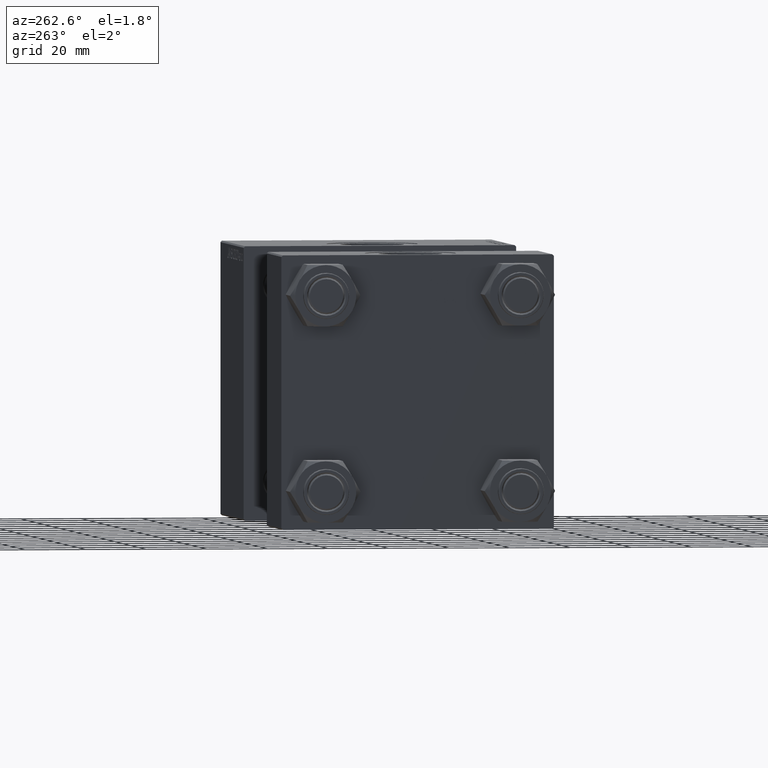
[diagram: clean part render]
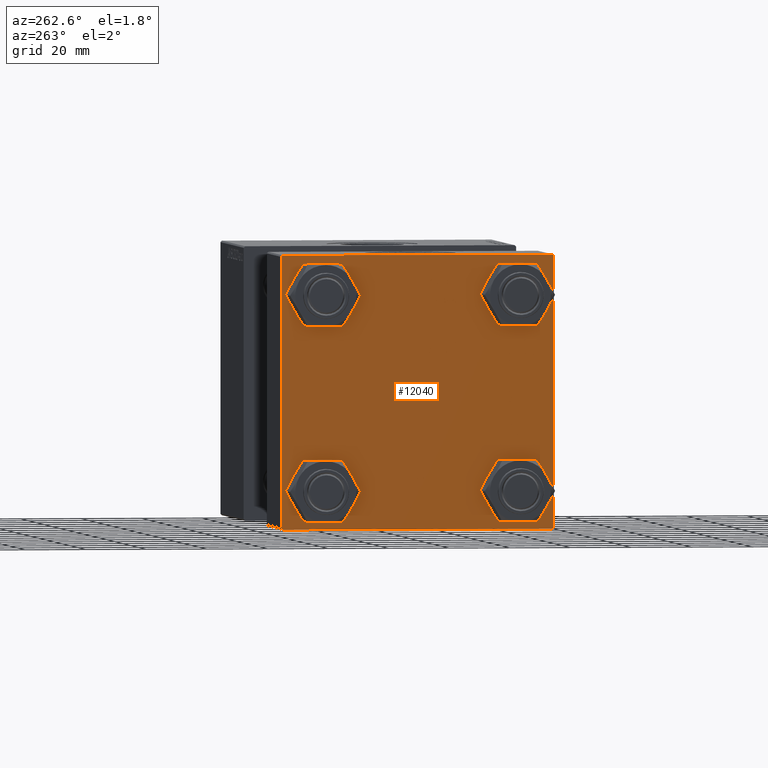
[diagram: same view with one face highlighted and labeled with its STEP entity id]
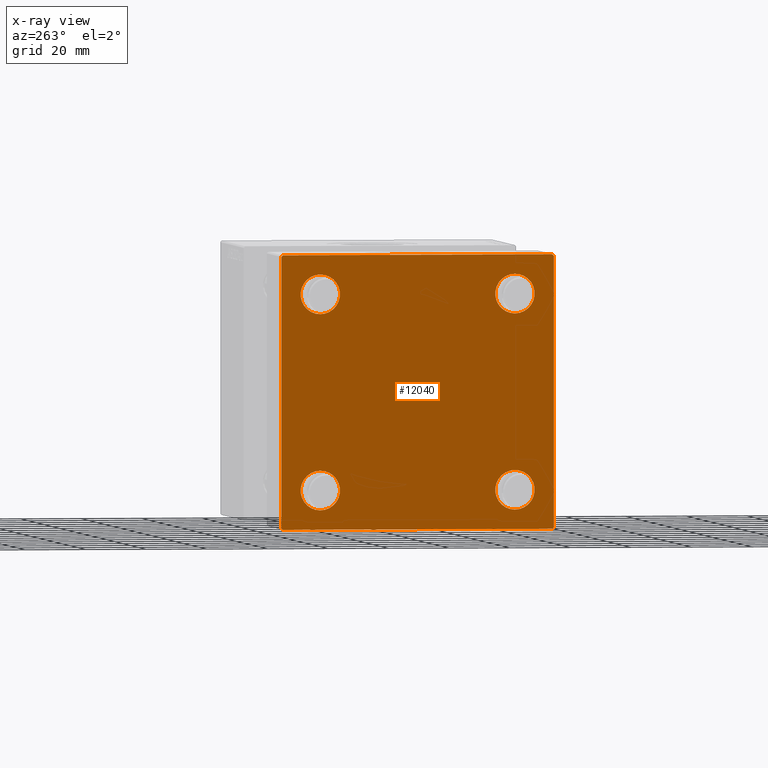
[diagram: x-ray of the same camera — body ghosted, the highlighted face saturated]
A machine part, auxiliary view. The second image highlights one B-rep face of the part: STEP entity #12040.
The next image is the same camera in x-ray: the body ghosted, the highlighted face saturated — about 0% of this face is hidden behind the body in this view.
In plain terms, the highlighted planar face has unit normal (-1, 0, 0).
Its self-contained STEP definition (entity closure, byte-faithful):
#12 = DIRECTION ( 'NONE',  ( 0.000000000000000000, -0.7071067811865672237, 0.7071067811865279218 ) ) ;
#197 = LINE ( 'NONE', #38522, #40709 ) ;
#264 = LINE ( 'NONE', #19299, #34471 ) ;
#451 = VECTOR ( 'NONE', #15114, 1000.000000000000114 ) ;
#694 = DIRECTION ( 'NONE',  ( 0.000000000000000000, -1.000000000000000000, -7.709882115452476934E-17 ) ) ;
#762 = CARTESIAN_POINT ( 'NONE',  ( 0.000000000000000000, -32.14999999999997726, -25.65000000000002700 ) ) ;
#792 = CARTESIAN_POINT ( 'NONE',  ( 0.000000000000000000, 44.50000000000000000, -44.99999999999999289 ) ) ;
#1211 = CARTESIAN_POINT ( 'NONE',  ( 0.000000000000000000, 45.00000000000000000, 44.49999999999999289 ) ) ;
#1326 = CARTESIAN_POINT ( 'NONE',  ( 0.000000000000000000, -32.14999999999997726, 32.15000000000000568 ) ) ;
#1345 = CIRCLE ( 'NONE', #4578, 6.500000000000019540 ) ;
#1753 = DIRECTION ( 'NONE',  ( 0.000000000000000000, 0.000000000000000000, 1.000000000000000000 ) ) ;
#2187 = ORIENTED_EDGE ( 'NONE', *, *, #12980, .F. ) ;
#2196 = ORIENTED_EDGE ( 'NONE', *, *, #7033, .T. ) ;
#2466 = DIRECTION ( 'NONE',  ( 0.000000000000000000, 0.000000000000000000, -1.000000000000000000 ) ) ;
#3835 = EDGE_LOOP ( 'NONE', ( #25210, #17993 ) ) ;
#4510 = AXIS2_PLACEMENT_3D ( 'NONE', #32218, #36014, #1753 ) ;
#4578 = AXIS2_PLACEMENT_3D ( 'NONE', #12537, #19655, #35141 ) ;
#4588 = AXIS2_PLACEMENT_3D ( 'NONE', #49416, #49160, #14370 ) ;
#5144 = CARTESIAN_POINT ( 'NONE',  ( 0.000000000000000000, -45.00000000000000000, 44.49999999999998579 ) ) ;
#5287 = VERTEX_POINT ( 'NONE', #19971 ) ;
#5490 = CIRCLE ( 'NONE', #23316, 6.499999999999977796 ) ;
#6286 = ORIENTED_EDGE ( 'NONE', *, *, #49474, .T. ) ;
#6559 = DIRECTION ( 'NONE',  ( 0.000000000000000000, 0.000000000000000000, 1.000000000000000000 ) ) ;
#6595 = ORIENTED_EDGE ( 'NONE', *, *, #42210, .T. ) ;
#7033 = EDGE_CURVE ( 'NONE', #47088, #15901, #32966, .T. ) ;
#7310 = ORIENTED_EDGE ( 'NONE', *, *, #28101, .T. ) ;
#7668 = ORIENTED_EDGE ( 'NONE', *, *, #22825, .T. ) ;
#7974 = VERTEX_POINT ( 'NONE', #762 ) ;
#8081 = VERTEX_POINT ( 'NONE', #47463 ) ;
#8316 = LINE ( 'NONE', #16928, #47103 ) ;
#8342 = ORIENTED_EDGE ( 'NONE', *, *, #34610, .T. ) ;
#8428 = EDGE_LOOP ( 'NONE', ( #24834, #12143 ) ) ;
#8684 = AXIS2_PLACEMENT_3D ( 'NONE', #47758, #40128, #48014 ) ;
#9365 = CARTESIAN_POINT ( 'NONE',  ( 0.000000000000000000, -32.14999999999997726, -38.64999999999998437 ) ) ;
#9842 = DIRECTION ( 'NONE',  ( 1.000000000000000000, -0.000000000000000000, 0.000000000000000000 ) ) ;
#10317 = PLANE ( 'NONE',  #4588 ) ;
#10328 = CARTESIAN_POINT ( 'NONE',  ( 0.000000000000000000, 45.00000000000000000, 45.00000000000000711 ) ) ;
#10345 = VERTEX_POINT ( 'NONE', #9365 ) ;
#11571 = LINE ( 'NONE', #14613, #451 ) ;
#12040 = ADVANCED_FACE ( 'NONE', ( #33169, #18421, #21491, #14620, #13882 ), #10317, .T. ) ;
#12143 = ORIENTED_EDGE ( 'NONE', *, *, #39017, .T. ) ;
#12276 = DIRECTION ( 'NONE',  ( 1.000000000000000000, -0.000000000000000000, 0.000000000000000000 ) ) ;
#12537 = CARTESIAN_POINT ( 'NONE',  ( 0.000000000000000000, 32.14999999999999147, 32.14999999999999858 ) ) ;
#12980 = EDGE_CURVE ( 'NONE', #22125, #33341, #33120, .T. ) ;
#12986 = CARTESIAN_POINT ( 'NONE',  ( 0.000000000000000000, 44.74999999999936762, 44.75000000000061107 ) ) ;
#13021 = CARTESIAN_POINT ( 'NONE',  ( 0.000000000000000000, 32.14999999999999147, 38.65000000000001990 ) ) ;
#13488 = DIRECTION ( 'NONE',  ( 0.000000000000000000, 0.7071067811865574537, -0.7071067811865376918 ) ) ;
#13519 = AXIS2_PLACEMENT_3D ( 'NONE', #39895, #32283, #48280 ) ;
#13739 = LINE ( 'NONE', #12986, #43103 ) ;
#13862 = EDGE_CURVE ( 'NONE', #7974, #10345, #29028, .T. ) ;
#13882 = FACE_OUTER_BOUND ( 'NONE', #38731, .T. ) ;
#14370 = DIRECTION ( 'NONE',  ( -0.000000000000000000, 0.000000000000000000, 1.000000000000000000 ) ) ;
#14613 = CARTESIAN_POINT ( 'NONE',  ( -0.000000000000000000, -44.74999999999999289, 44.74999999999999289 ) ) ;
#14620 = FACE_BOUND ( 'NONE', #3835, .T. ) ;
#14987 = CARTESIAN_POINT ( 'NONE',  ( 0.000000000000000000, -32.14999999999997726, 25.65000000000002700 ) ) ;
#15114 = DIRECTION ( 'NONE',  ( -0.000000000000000000, 0.7071067811865474617, 0.7071067811865474617 ) ) ;
#15901 = VERTEX_POINT ( 'NONE', #24819 ) ;
#16175 = DIRECTION ( 'NONE',  ( 0.000000000000000000, -1.000000000000000000, -2.312964634635742957E-16 ) ) ;
#16928 = CARTESIAN_POINT ( 'NONE',  ( 0.000000000000000000, 45.00000000000000000, 45.00000000000000711 ) ) ;
#16988 = CARTESIAN_POINT ( 'NONE',  ( 0.000000000000000000, -45.00000000000000000, -44.49999999999997158 ) ) ;
#17993 = ORIENTED_EDGE ( 'NONE', *, *, #33268, .T. ) ;
#18072 = CARTESIAN_POINT ( 'NONE',  ( 0.000000000000000000, 44.74999999999999289, -44.74999999999999289 ) ) ;
#18421 = FACE_BOUND ( 'NONE', #8428, .T. ) ;
#18629 = CARTESIAN_POINT ( 'NONE',  ( 0.000000000000000000, -44.49999999999994316, -45.00000000000000000 ) ) ;
#19299 = CARTESIAN_POINT ( 'NONE',  ( 0.000000000000000000, -44.74999999999873523, -44.75000000000122924 ) ) ;
#19426 = CARTESIAN_POINT ( 'NONE',  ( 0.000000000000000000, -44.49999999999997158, 44.99999999999998579 ) ) ;
#19655 = DIRECTION ( 'NONE',  ( 1.000000000000000000, -0.000000000000000000, 0.000000000000000000 ) ) ;
#19971 = CARTESIAN_POINT ( 'NONE',  ( 0.000000000000000000, 45.00000000000000000, -44.49999999999996447 ) ) ;
#21491 = FACE_BOUND ( 'NONE', #24467, .T. ) ;
#22036 = VERTEX_POINT ( 'NONE', #13021 ) ;
#22125 = VERTEX_POINT ( 'NONE', #5144 ) ;
#22377 = DIRECTION ( 'NONE',  ( -0.000000000000000000, -0.7071067811865474617, -0.7071067811865474617 ) ) ;
#22533 = CARTESIAN_POINT ( 'NONE',  ( 0.000000000000000000, -32.14999999999997726, 32.15000000000000568 ) ) ;
#22629 = LINE ( 'NONE', #18072, #26440 ) ;
#22825 = EDGE_CURVE ( 'NONE', #29956, #5287, #33426, .T. ) ;
#23280 = CIRCLE ( 'NONE', #47596, 6.499999999999977796 ) ;
#23316 = AXIS2_PLACEMENT_3D ( 'NONE', #1326, #12276, #47799 ) ;
#24092 = EDGE_CURVE ( 'NONE', #8081, #25138, #8316, .T. ) ;
#24467 = EDGE_LOOP ( 'NONE', ( #6286, #2196 ) ) ;
#24677 = DIRECTION ( 'NONE',  ( 0.000000000000000000, 0.000000000000000000, 1.000000000000000000 ) ) ;
#24819 = CARTESIAN_POINT ( 'NONE',  ( 0.000000000000000000, 32.14999999999999147, -25.64999999999997726 ) ) ;
#24834 = ORIENTED_EDGE ( 'NONE', *, *, #13862, .T. ) ;
#25138 = VERTEX_POINT ( 'NONE', #19426 ) ;
#25210 = ORIENTED_EDGE ( 'NONE', *, *, #40663, .T. ) ;
#25855 = DIRECTION ( 'NONE',  ( 1.000000000000000000, -0.000000000000000000, 0.000000000000000000 ) ) ;
#26096 = CARTESIAN_POINT ( 'NONE',  ( 0.000000000000000000, 32.14999999999999147, -38.65000000000001990 ) ) ;
#26440 = VECTOR ( 'NONE', #22377, 1000.000000000000114 ) ;
#26783 = EDGE_CURVE ( 'NONE', #8081, #29956, #13739, .T. ) ;
#28101 = EDGE_CURVE ( 'NONE', #45923, #29478, #197, .T. ) ;
#28247 = DIRECTION ( 'NONE',  ( 1.000000000000000000, -0.000000000000000000, 0.000000000000000000 ) ) ;
#28890 = DIRECTION ( 'NONE',  ( 0.000000000000000000, 0.000000000000000000, 1.000000000000000000 ) ) ;
#29028 = CIRCLE ( 'NONE', #48484, 6.499999999999977796 ) ;
#29478 = VERTEX_POINT ( 'NONE', #18629 ) ;
#29564 = DIRECTION ( 'NONE',  ( 0.000000000000000000, 0.000000000000000000, -1.000000000000000000 ) ) ;
#29956 = VERTEX_POINT ( 'NONE', #1211 ) ;
#30571 = CIRCLE ( 'NONE', #8684, 6.499999999999977796 ) ;
#31128 = EDGE_LOOP ( 'NONE', ( #6595, #49952 ) ) ;
#32218 = CARTESIAN_POINT ( 'NONE',  ( 0.000000000000000000, 32.14999999999999147, 32.14999999999999858 ) ) ;
#32283 = DIRECTION ( 'NONE',  ( 1.000000000000000000, -0.000000000000000000, 0.000000000000000000 ) ) ;
#32503 = VERTEX_POINT ( 'NONE', #37762 ) ;
#32695 = ORIENTED_EDGE ( 'NONE', *, *, #26783, .T. ) ;
#32966 = CIRCLE ( 'NONE', #13519, 6.500000000000019540 ) ;
#33120 = LINE ( 'NONE', #36681, #37886 ) ;
#33169 = FACE_BOUND ( 'NONE', #31128, .T. ) ;
#33268 = EDGE_CURVE ( 'NONE', #32503, #22036, #40172, .T. ) ;
#33341 = VERTEX_POINT ( 'NONE', #16988 ) ;
#33426 = LINE ( 'NONE', #10328, #47933 ) ;
#33746 = EDGE_CURVE ( 'NONE', #22125, #25138, #11571, .T. ) ;
#34085 = EDGE_CURVE ( 'NONE', #29478, #33341, #264, .T. ) ;
#34471 = VECTOR ( 'NONE', #12, 1000.000000000000000 ) ;
#34610 = EDGE_CURVE ( 'NONE', #5287, #45923, #22629, .T. ) ;
#35141 = DIRECTION ( 'NONE',  ( 0.000000000000000000, 0.000000000000000000, 1.000000000000000000 ) ) ;
#36014 = DIRECTION ( 'NONE',  ( 1.000000000000000000, -0.000000000000000000, 0.000000000000000000 ) ) ;
#36681 = CARTESIAN_POINT ( 'NONE',  ( 0.000000000000000000, -45.00000000000000000, 44.99999999999998579 ) ) ;
#37762 = CARTESIAN_POINT ( 'NONE',  ( 0.000000000000000000, 32.14999999999999147, 25.64999999999997726 ) ) ;
#37886 = VECTOR ( 'NONE', #29564, 1000.000000000000000 ) ;
#38522 = CARTESIAN_POINT ( 'NONE',  ( 0.000000000000000000, 45.00000000000000000, -44.99999999999999289 ) ) ;
#38731 = EDGE_LOOP ( 'NONE', ( #7668, #8342, #7310, #47435, #2187, #39397, #48182, #32695 ) ) ;
#39017 = EDGE_CURVE ( 'NONE', #10345, #7974, #30571, .T. ) ;
#39397 = ORIENTED_EDGE ( 'NONE', *, *, #33746, .T. ) ;
#39895 = CARTESIAN_POINT ( 'NONE',  ( 0.000000000000000000, 32.14999999999999147, -32.14999999999999858 ) ) ;
#39901 = CARTESIAN_POINT ( 'NONE',  ( 0.000000000000000000, 32.14999999999999147, -32.14999999999999858 ) ) ;
#40128 = DIRECTION ( 'NONE',  ( 1.000000000000000000, -0.000000000000000000, 0.000000000000000000 ) ) ;
#40172 = CIRCLE ( 'NONE', #4510, 6.500000000000019540 ) ;
#40663 = EDGE_CURVE ( 'NONE', #22036, #32503, #1345, .T. ) ;
#40709 = VECTOR ( 'NONE', #694, 1000.000000000000000 ) ;
#42154 = CIRCLE ( 'NONE', #44590, 6.500000000000019540 ) ;
#42210 = EDGE_CURVE ( 'NONE', #43629, #49728, #23280, .T. ) ;
#42748 = EDGE_CURVE ( 'NONE', #49728, #43629, #5490, .T. ) ;
#43103 = VECTOR ( 'NONE', #13488, 999.9999999999998863 ) ;
#43629 = VERTEX_POINT ( 'NONE', #48062 ) ;
#44590 = AXIS2_PLACEMENT_3D ( 'NONE', #39901, #28247, #24677 ) ;
#44612 = CARTESIAN_POINT ( 'NONE',  ( 0.000000000000000000, -32.14999999999997726, -32.15000000000000568 ) ) ;
#45923 = VERTEX_POINT ( 'NONE', #792 ) ;
#47088 = VERTEX_POINT ( 'NONE', #26096 ) ;
#47103 = VECTOR ( 'NONE', #16175, 1000.000000000000000 ) ;
#47435 = ORIENTED_EDGE ( 'NONE', *, *, #34085, .T. ) ;
#47463 = CARTESIAN_POINT ( 'NONE',  ( 0.000000000000000000, 44.49999999999997158, 45.00000000000000711 ) ) ;
#47596 = AXIS2_PLACEMENT_3D ( 'NONE', #22533, #25855, #6559 ) ;
#47758 = CARTESIAN_POINT ( 'NONE',  ( 0.000000000000000000, -32.14999999999997726, -32.15000000000000568 ) ) ;
#47799 = DIRECTION ( 'NONE',  ( 0.000000000000000000, 0.000000000000000000, 1.000000000000000000 ) ) ;
#47933 = VECTOR ( 'NONE', #2466, 1000.000000000000000 ) ;
#48014 = DIRECTION ( 'NONE',  ( 0.000000000000000000, 0.000000000000000000, 1.000000000000000000 ) ) ;
#48062 = CARTESIAN_POINT ( 'NONE',  ( 0.000000000000000000, -32.14999999999997726, 38.64999999999999147 ) ) ;
#48182 = ORIENTED_EDGE ( 'NONE', *, *, #24092, .F. ) ;
#48280 = DIRECTION ( 'NONE',  ( 0.000000000000000000, 0.000000000000000000, 1.000000000000000000 ) ) ;
#48484 = AXIS2_PLACEMENT_3D ( 'NONE', #44612, #9842, #28890 ) ;
#49160 = DIRECTION ( 'NONE',  ( -1.000000000000000000, 0.000000000000000000, -0.000000000000000000 ) ) ;
#49416 = CARTESIAN_POINT ( 'NONE',  ( 0.000000000000000000, 0.000000000000000000, 0.000000000000000000 ) ) ;
#49474 = EDGE_CURVE ( 'NONE', #15901, #47088, #42154, .T. ) ;
#49728 = VERTEX_POINT ( 'NONE', #14987 ) ;
#49952 = ORIENTED_EDGE ( 'NONE', *, *, #42748, .T. ) ;